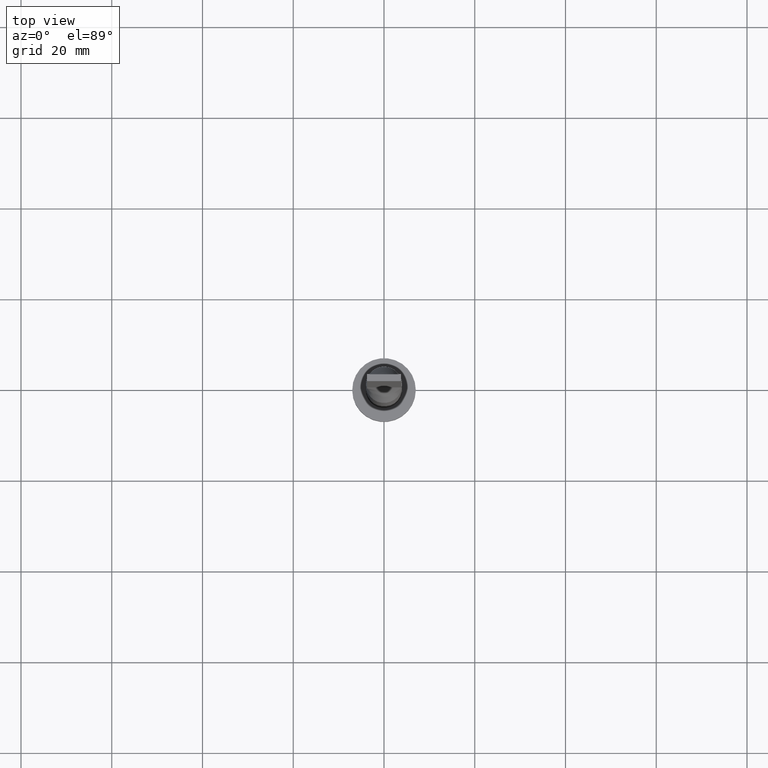
[diagram: clean part render]
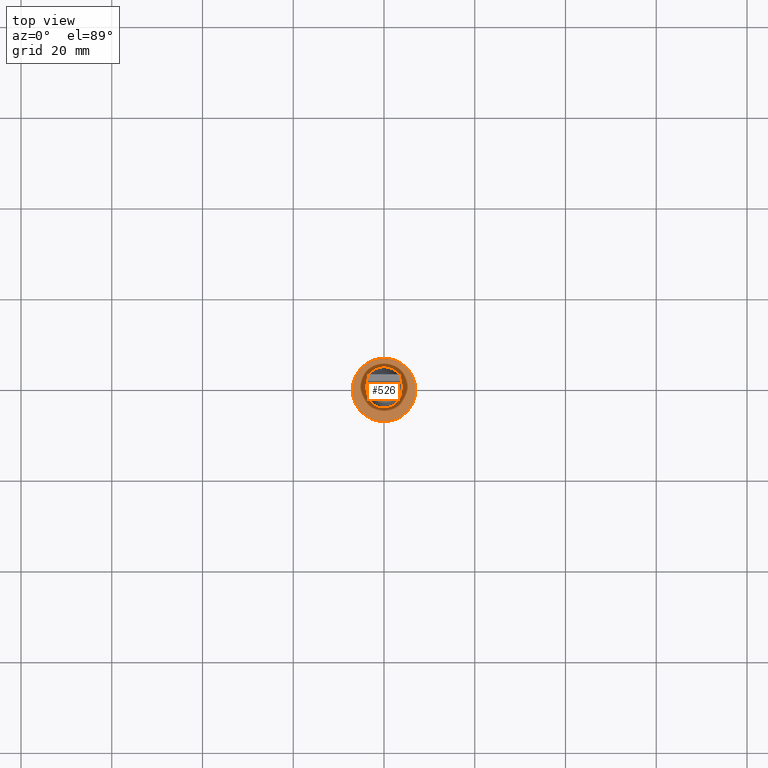
[diagram: same view with one face highlighted and labeled with its STEP entity id]
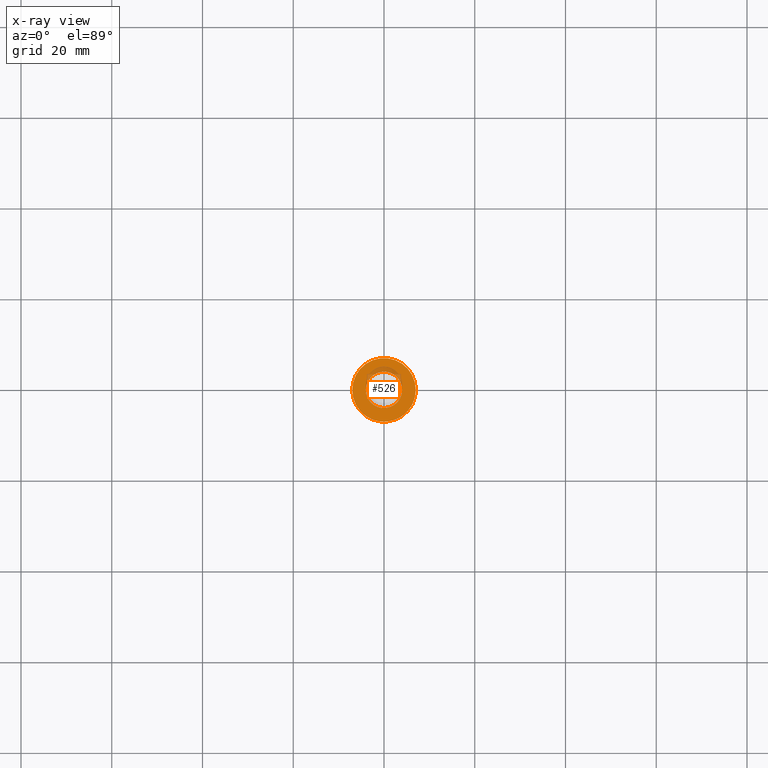
[diagram: x-ray of the same camera — body ghosted, the highlighted face saturated]
A machine part, top view. The second image highlights one B-rep face of the part: STEP entity #526.
The next image is the same camera in x-ray: the body ghosted, the highlighted face saturated — about 9% of this face is hidden behind the body in this view.
In plain terms, the highlighted planar face has unit normal (0, 0, 1).
Its self-contained STEP definition (entity closure, byte-faithful):
#34 = ORIENTED_EDGE ( 'NONE', *, *, #569, .F. ) ;
#37 = ORIENTED_EDGE ( 'NONE', *, *, #214, .T. ) ;
#68 = EDGE_LOOP ( 'NONE', ( #37, #366 ) ) ;
#89 = VERTEX_POINT ( 'NONE', #395 ) ;
#106 = FACE_OUTER_BOUND ( 'NONE', #68, .T. ) ;
#113 = CARTESIAN_POINT ( 'NONE',  ( 0.000000000000000000, 0.000000000000000000, 5.000000000000000000 ) ) ;
#135 = CIRCLE ( 'NONE', #574, 7.000000000000000000 ) ;
#154 = AXIS2_PLACEMENT_3D ( 'NONE', #333, #190, #252 ) ;
#186 = CARTESIAN_POINT ( 'NONE',  ( 0.000000000000000000, 0.000000000000000000, 5.000000000000000000 ) ) ;
#190 = DIRECTION ( 'NONE',  ( 0.000000000000000000, 0.000000000000000000, 1.000000000000000000 ) ) ;
#195 = CIRCLE ( 'NONE', #154, 7.000000000000000000 ) ;
#197 = CIRCLE ( 'NONE', #501, 4.000000000000000000 ) ;
#206 = VERTEX_POINT ( 'NONE', #429 ) ;
#208 = CARTESIAN_POINT ( 'NONE',  ( 0.000000000000000000, 0.000000000000000000, 5.000000000000000000 ) ) ;
#210 = AXIS2_PLACEMENT_3D ( 'NONE', #186, #370, #556 ) ;
#214 = EDGE_CURVE ( 'NONE', #89, #206, #135, .T. ) ;
#234 = EDGE_CURVE ( 'NONE', #206, #89, #195, .T. ) ;
#251 = DIRECTION ( 'NONE',  ( 0.000000000000000000, 0.000000000000000000, 1.000000000000000000 ) ) ;
#252 = DIRECTION ( 'NONE',  ( 1.000000000000000000, 0.000000000000000000, 0.000000000000000000 ) ) ;
#256 = DIRECTION ( 'NONE',  ( 1.000000000000000000, 0.000000000000000000, 0.000000000000000000 ) ) ;
#277 = CARTESIAN_POINT ( 'NONE',  ( 0.000000000000000000, 0.000000000000000000, 5.000000000000000000 ) ) ;
#284 = EDGE_CURVE ( 'NONE', #524, #466, #536, .T. ) ;
#329 = PLANE ( 'NONE',  #391 ) ;
#333 = CARTESIAN_POINT ( 'NONE',  ( 0.000000000000000000, 0.000000000000000000, 5.000000000000000000 ) ) ;
#366 = ORIENTED_EDGE ( 'NONE', *, *, #234, .T. ) ;
#370 = DIRECTION ( 'NONE',  ( 0.000000000000000000, 0.000000000000000000, 1.000000000000000000 ) ) ;
#380 = FACE_BOUND ( 'NONE', #415, .T. ) ;
#381 = DIRECTION ( 'NONE',  ( 0.000000000000000000, 0.000000000000000000, 1.000000000000000000 ) ) ;
#391 = AXIS2_PLACEMENT_3D ( 'NONE', #277, #558, #567 ) ;
#395 = CARTESIAN_POINT ( 'NONE',  ( -7.000000000000000000, 0.000000000000000000, 5.000000000000000000 ) ) ;
#412 = ORIENTED_EDGE ( 'NONE', *, *, #284, .F. ) ;
#415 = EDGE_LOOP ( 'NONE', ( #412, #34 ) ) ;
#429 = CARTESIAN_POINT ( 'NONE',  ( 7.000000000000000000, 8.572527594031473190E-16, 5.000000000000000000 ) ) ;
#452 = CARTESIAN_POINT ( 'NONE',  ( 4.000000000000000000, 4.898587196589412829E-16, 5.000000000000000000 ) ) ;
#466 = VERTEX_POINT ( 'NONE', #452 ) ;
#473 = DIRECTION ( 'NONE',  ( 1.000000000000000000, 0.000000000000000000, 0.000000000000000000 ) ) ;
#501 = AXIS2_PLACEMENT_3D ( 'NONE', #208, #251, #256 ) ;
#522 = CARTESIAN_POINT ( 'NONE',  ( -4.000000000000000000, 0.000000000000000000, 5.000000000000000000 ) ) ;
#524 = VERTEX_POINT ( 'NONE', #522 ) ;
#526 = ADVANCED_FACE ( 'NONE', ( #380, #106 ), #329, .T. ) ;
#536 = CIRCLE ( 'NONE', #210, 4.000000000000000000 ) ;
#556 = DIRECTION ( 'NONE',  ( 1.000000000000000000, 0.000000000000000000, 0.000000000000000000 ) ) ;
#558 = DIRECTION ( 'NONE',  ( 0.000000000000000000, 0.000000000000000000, 1.000000000000000000 ) ) ;
#567 = DIRECTION ( 'NONE',  ( 1.000000000000000000, 0.000000000000000000, -0.000000000000000000 ) ) ;
#569 = EDGE_CURVE ( 'NONE', #466, #524, #197, .T. ) ;
#574 = AXIS2_PLACEMENT_3D ( 'NONE', #113, #381, #473 ) ;